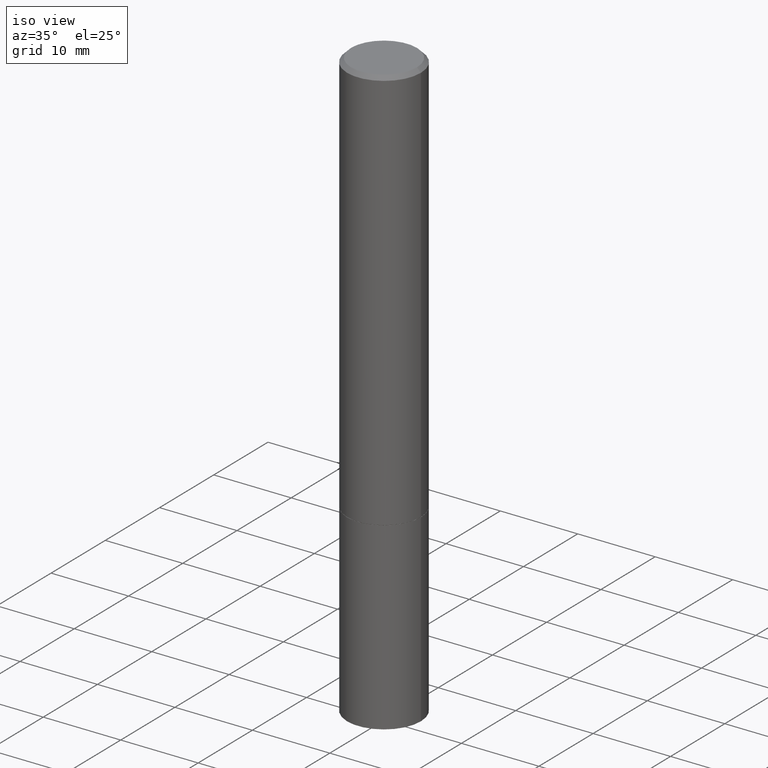
[diagram: clean part render]
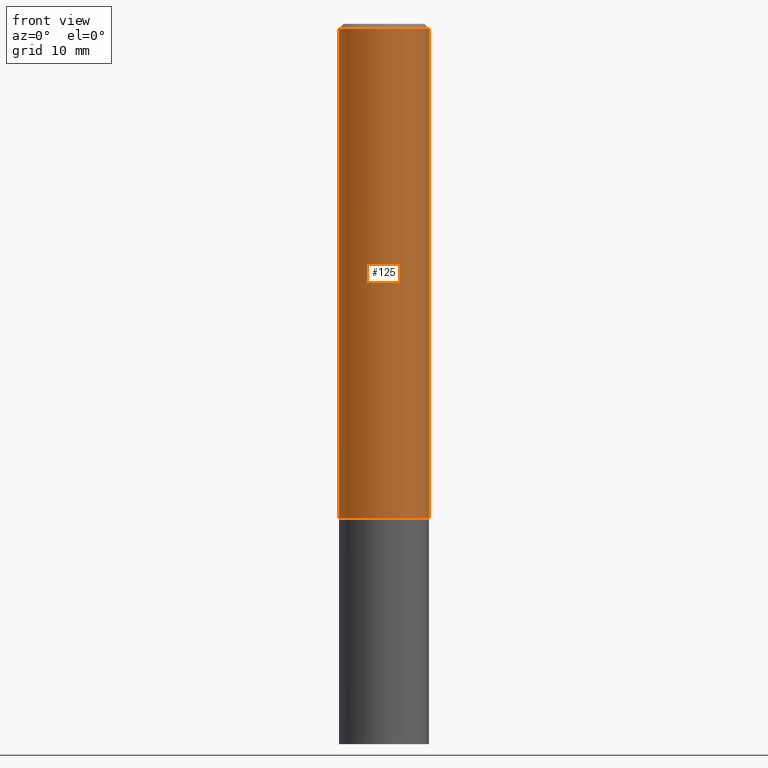
[diagram: tour spotlight — one face highlighted and labeled with its STEP entity id]
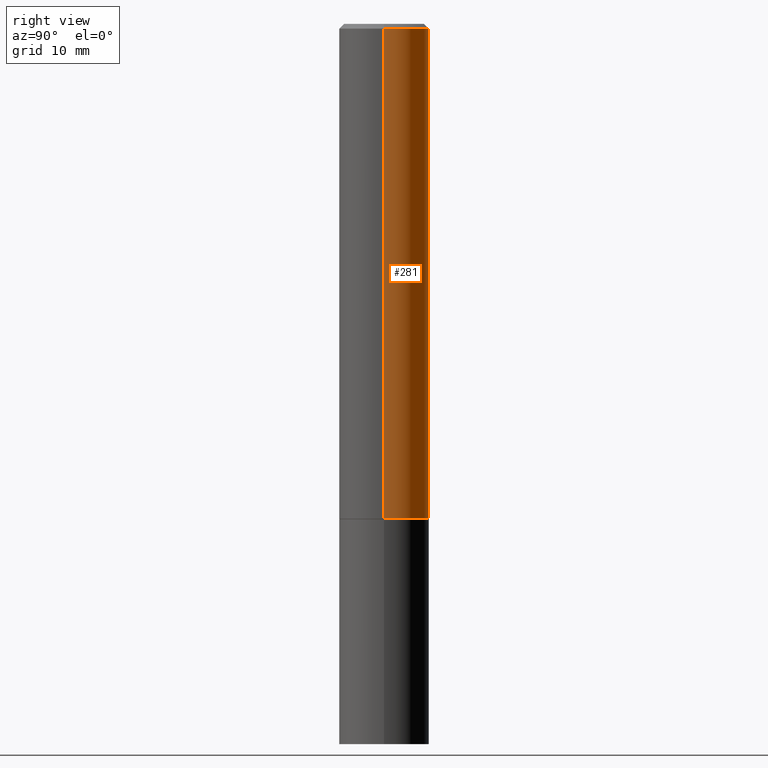
[diagram: tour spotlight — one face highlighted and labeled with its STEP entity id]
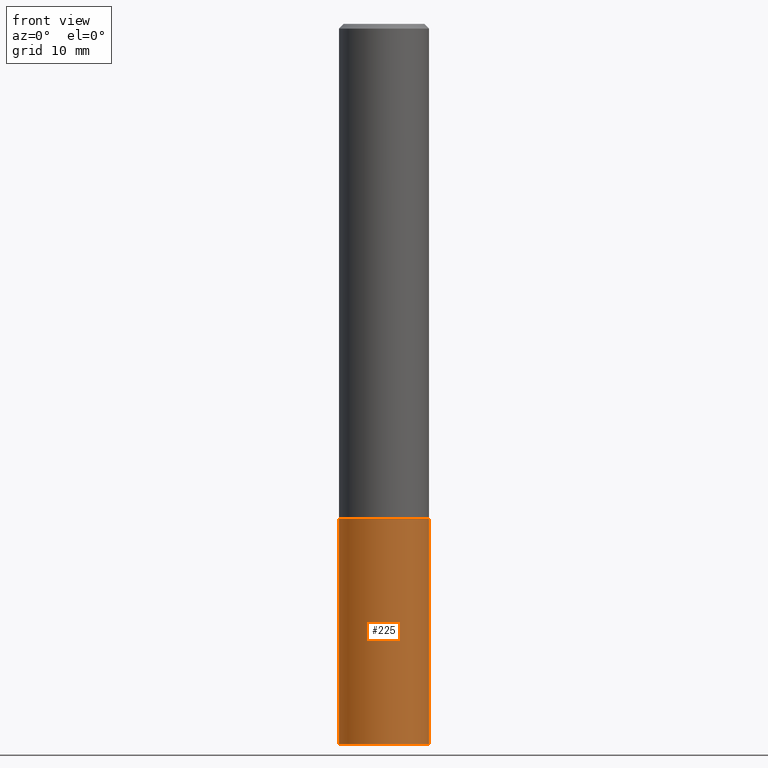
[diagram: tour spotlight — one face highlighted and labeled with its STEP entity id]
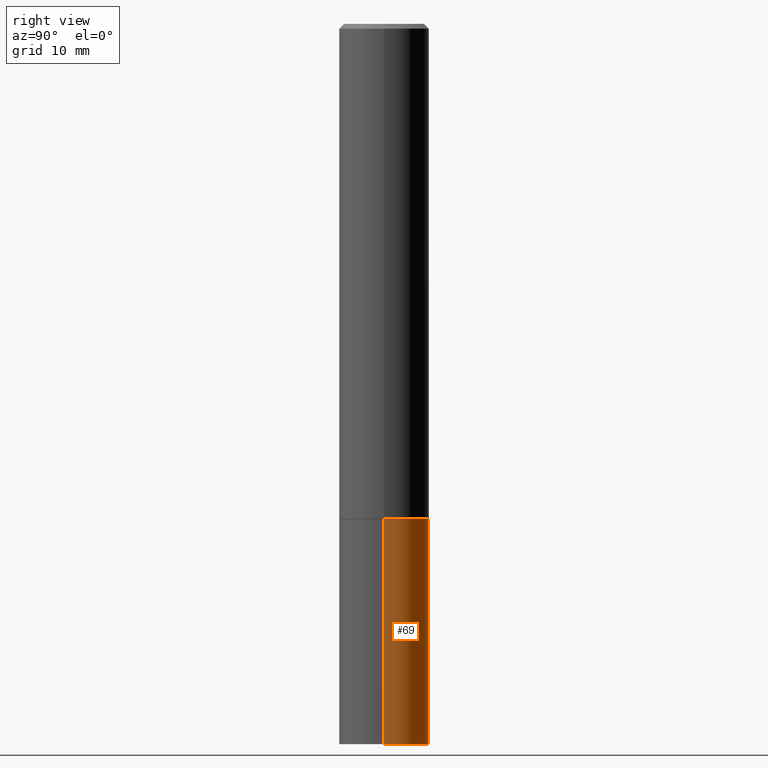
[diagram: tour spotlight — one face highlighted and labeled with its STEP entity id]
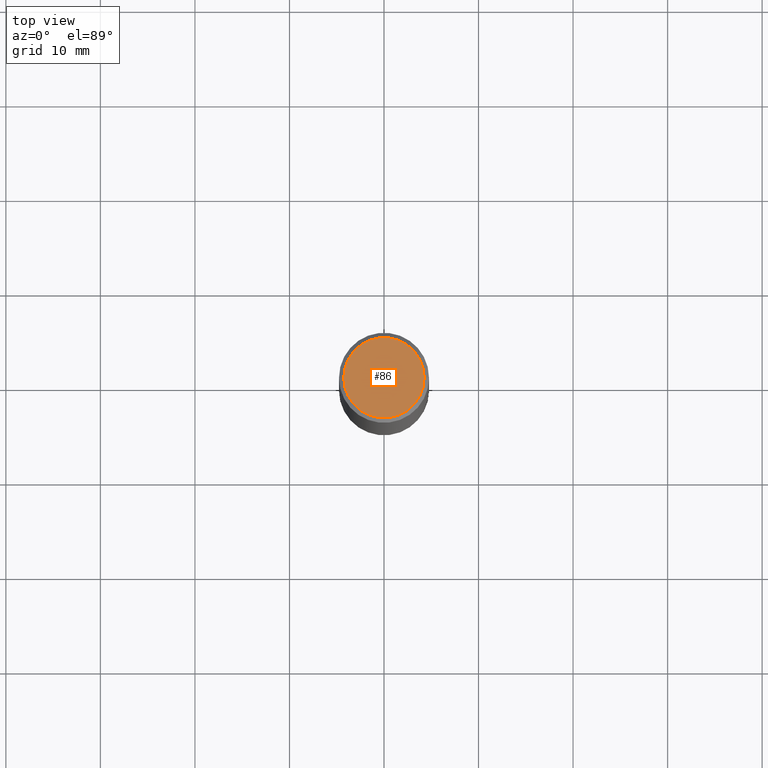
[diagram: tour spotlight — one face highlighted and labeled with its STEP entity id]
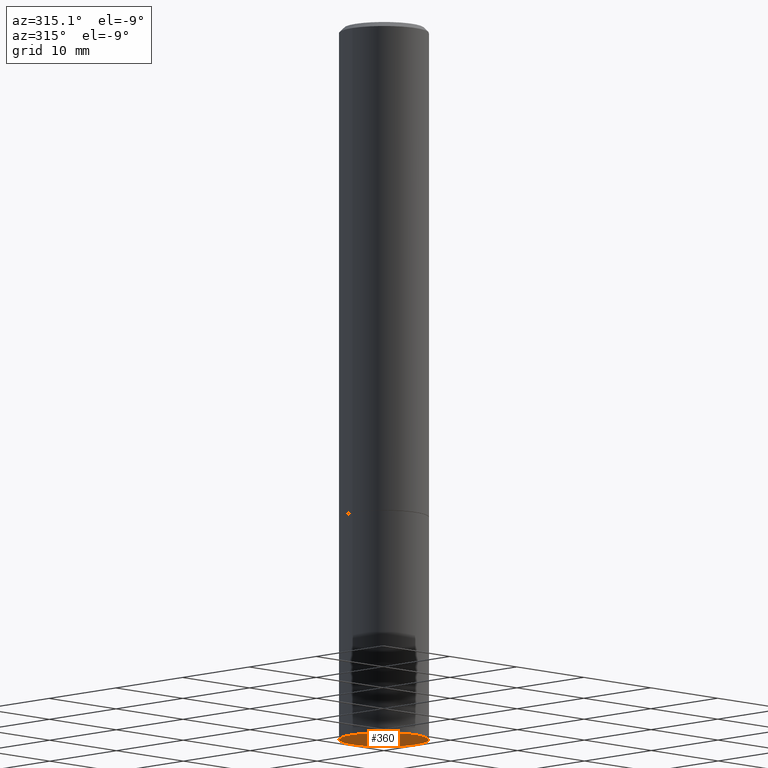
[diagram: tour spotlight — one face highlighted and labeled with its STEP entity id]
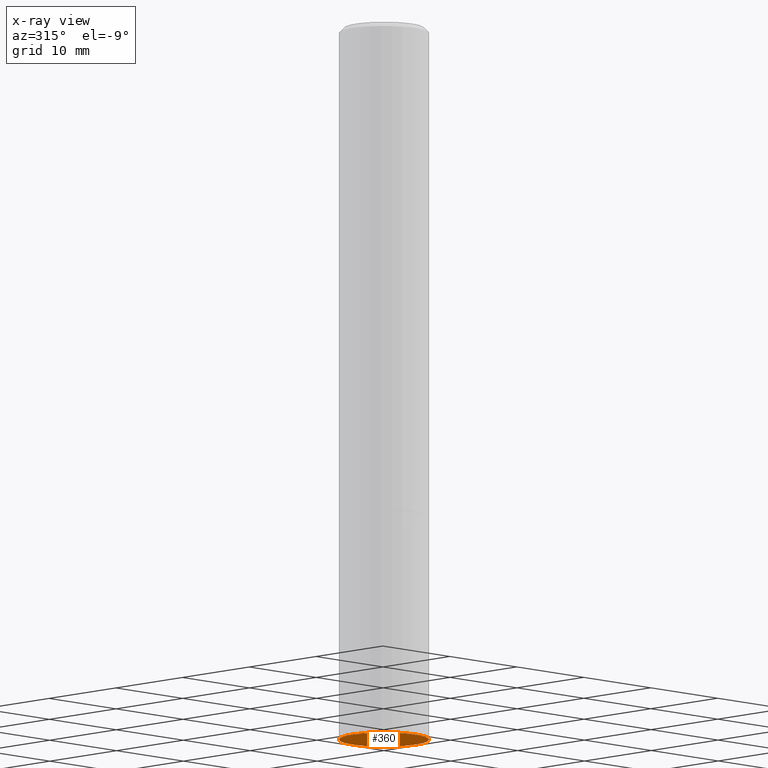
[diagram: x-ray of the same camera — body ghosted, this tour face saturated]
A machine part: a face-by-face anatomy tour. The part has 12 B-rep faces; the first image is the clean iso view, then the 6 largest visible faces are spotlighted one at a time (largest first), each with its STEP entity span.

Face 1 — front view, entity #125. In plain terms, the highlighted cylindrical surface (partial cylindrical patch) has radius 4.7625 mm, axis along (-0, 0, 1).
Definition (entity closure, byte-faithful):
#2 = VERTEX_POINT ( 'NONE', #108 ) ;
#5 = DIRECTION ( 'NONE',  ( 1.000000000000000000, -6.982962677686266711E-15, 0.000000000000000000 ) ) ;
#13 = LINE ( 'NONE', #272, #51 ) ;
#47 = EDGE_CURVE ( 'NONE', #2, #316, #13, .T. ) ;
#51 = VECTOR ( 'NONE', #190, 39.37007874015748143 ) ;
#55 = AXIS2_PLACEMENT_3D ( 'NONE', #121, #68, #237 ) ;
#61 = EDGE_LOOP ( 'NONE', ( #331, #251, #212, #284 ) ) ;
#68 = DIRECTION ( 'NONE',  ( -2.445468806185136597E-29, 3.491481338843145583E-15, 1.000000000000000000 ) ) ;
#78 = DIRECTION ( 'NONE',  ( -2.445468806185136877E-29, 3.491481338843145188E-15, 1.000000000000000000 ) ) ;
#84 = LINE ( 'NONE', #359, #334 ) ;
#88 = VERTEX_POINT ( 'NONE', #206 ) ;
#92 = EDGE_CURVE ( 'NONE', #2, #146, #356, .T. ) ;
#95 = AXIS2_PLACEMENT_3D ( 'NONE', #218, #322, #240 ) ;
#98 = EDGE_CURVE ( 'NONE', #316, #88, #261, .T. ) ;
#99 = CYLINDRICAL_SURFACE ( 'NONE', #55, 0.1874999999999998890 ) ;
#101 = CARTESIAN_POINT ( 'NONE',  ( -0.1874999999999997502, 1.239475875289309935E-15, -0.02000000000000004205 ) ) ;
#108 = CARTESIAN_POINT ( 'NONE',  ( -0.1875000000000000278, -2.301491573850814614E-15, -2.061500000000000110 ) ) ;
#121 = CARTESIAN_POINT ( 'NONE',  ( 0.000000000000000000, 0.000000000000000000, 0.000000000000000000 ) ) ;
#125 = ADVANCED_FACE ( 'NONE', ( #293 ), #99, .T. ) ;
#132 = DIRECTION ( 'NONE',  ( -2.445468806185136597E-29, 3.491481338843145583E-15, 1.000000000000000000 ) ) ;
#146 = VERTEX_POINT ( 'NONE', #353 ) ;
#171 = EDGE_CURVE ( 'NONE', #146, #88, #84, .T. ) ;
#173 = AXIS2_PLACEMENT_3D ( 'NONE', #349, #132, #5 ) ;
#190 = DIRECTION ( 'NONE',  ( -2.445468806185136877E-29, 3.491481338843145188E-15, 1.000000000000000000 ) ) ;
#206 = CARTESIAN_POINT ( 'NONE',  ( 0.1874999999999997502, -1.356173001359023494E-15, -0.02000000000000004205 ) ) ;
#212 = ORIENTED_EDGE ( 'NONE', *, *, #171, .T. ) ;
#218 = CARTESIAN_POINT ( 'NONE',  ( 4.890937612370283668E-31, -6.982962677686305168E-17, -0.02000000000000004205 ) ) ;
#237 = DIRECTION ( 'NONE',  ( 1.000000000000000000, -6.982962677686265922E-15, 4.876176775795935793E-29 ) ) ;
#240 = DIRECTION ( 'NONE',  ( 1.000000000000000000, -6.982962677686265133E-15, 0.000000000000000000 ) ) ;
#251 = ORIENTED_EDGE ( 'NONE', *, *, #92, .T. ) ;
#261 = CIRCLE ( 'NONE', #95, 0.1874999999999997502 ) ;
#272 = CARTESIAN_POINT ( 'NONE',  ( -0.1874999999999998890, 1.332267629550187060E-15, -9.223003294227942385E-30 ) ) ;
#284 = ORIENTED_EDGE ( 'NONE', *, *, #98, .F. ) ;
#293 = FACE_OUTER_BOUND ( 'NONE', #61, .T. ) ;
#316 = VERTEX_POINT ( 'NONE', #101 ) ;
#322 = DIRECTION ( 'NONE',  ( -2.445468806185136597E-29, 3.491481338843145583E-15, 1.000000000000000000 ) ) ;
#331 = ORIENTED_EDGE ( 'NONE', *, *, #47, .F. ) ;
#334 = VECTOR ( 'NONE', #78, 39.37007874015748143 ) ;
#349 = CARTESIAN_POINT ( 'NONE',  ( 5.041333943950659188E-29, -7.197688780025145571E-15, -2.061500000000000110 ) ) ;
#353 = CARTESIAN_POINT ( 'NONE',  ( 0.1875000000000000278, -8.506994282091320579E-15, -2.061500000000000110 ) ) ;
#356 = CIRCLE ( 'NONE', #173, 0.1875000000000000278 ) ;
#359 = CARTESIAN_POINT ( 'NONE',  ( 0.1874999999999998890, -1.309305502066174022E-15, 9.142831454617374006E-30 ) ) ;

Face 2 — right view, entity #281. In plain terms, the highlighted cylindrical surface (partial cylindrical patch) has radius 4.7625 mm, axis along (-0, 0, 1).
Definition (entity closure, byte-faithful):
#2 = VERTEX_POINT ( 'NONE', #108 ) ;
#9 = DIRECTION ( 'NONE',  ( 1.000000000000000000, -6.982962677686266711E-15, 0.000000000000000000 ) ) ;
#13 = LINE ( 'NONE', #272, #51 ) ;
#32 = CIRCLE ( 'NONE', #231, 0.1874999999999997502 ) ;
#46 = DIRECTION ( 'NONE',  ( -2.445468806185136597E-29, 3.491481338843145583E-15, 1.000000000000000000 ) ) ;
#47 = EDGE_CURVE ( 'NONE', #2, #316, #13, .T. ) ;
#51 = VECTOR ( 'NONE', #190, 39.37007874015748143 ) ;
#58 = CIRCLE ( 'NONE', #138, 0.1875000000000000278 ) ;
#73 = DIRECTION ( 'NONE',  ( 1.000000000000000000, -6.982962677686265133E-15, 0.000000000000000000 ) ) ;
#78 = DIRECTION ( 'NONE',  ( -2.445468806185136877E-29, 3.491481338843145188E-15, 1.000000000000000000 ) ) ;
#84 = LINE ( 'NONE', #359, #334 ) ;
#85 = AXIS2_PLACEMENT_3D ( 'NONE', #236, #347, #342 ) ;
#88 = VERTEX_POINT ( 'NONE', #206 ) ;
#93 = ORIENTED_EDGE ( 'NONE', *, *, #348, .T. ) ;
#101 = CARTESIAN_POINT ( 'NONE',  ( -0.1874999999999997502, 1.239475875289309935E-15, -0.02000000000000004205 ) ) ;
#108 = CARTESIAN_POINT ( 'NONE',  ( -0.1875000000000000278, -2.301491573850814614E-15, -2.061500000000000110 ) ) ;
#111 = ORIENTED_EDGE ( 'NONE', *, *, #47, .T. ) ;
#115 = CARTESIAN_POINT ( 'NONE',  ( 4.890937612370283668E-31, -6.982962677686305168E-17, -0.02000000000000004205 ) ) ;
#135 = EDGE_LOOP ( 'NONE', ( #93, #111, #365, #201 ) ) ;
#138 = AXIS2_PLACEMENT_3D ( 'NONE', #329, #46, #9 ) ;
#146 = VERTEX_POINT ( 'NONE', #353 ) ;
#171 = EDGE_CURVE ( 'NONE', #146, #88, #84, .T. ) ;
#190 = DIRECTION ( 'NONE',  ( -2.445468806185136877E-29, 3.491481338843145188E-15, 1.000000000000000000 ) ) ;
#201 = ORIENTED_EDGE ( 'NONE', *, *, #171, .F. ) ;
#204 = CYLINDRICAL_SURFACE ( 'NONE', #85, 0.1874999999999998890 ) ;
#206 = CARTESIAN_POINT ( 'NONE',  ( 0.1874999999999997502, -1.356173001359023494E-15, -0.02000000000000004205 ) ) ;
#209 = FACE_OUTER_BOUND ( 'NONE', #135, .T. ) ;
#231 = AXIS2_PLACEMENT_3D ( 'NONE', #115, #299, #73 ) ;
#236 = CARTESIAN_POINT ( 'NONE',  ( 0.000000000000000000, 0.000000000000000000, 0.000000000000000000 ) ) ;
#257 = EDGE_CURVE ( 'NONE', #88, #316, #32, .T. ) ;
#272 = CARTESIAN_POINT ( 'NONE',  ( -0.1874999999999998890, 1.332267629550187060E-15, -9.223003294227942385E-30 ) ) ;
#281 = ADVANCED_FACE ( 'NONE', ( #209 ), #204, .T. ) ;
#299 = DIRECTION ( 'NONE',  ( -2.445468806185136597E-29, 3.491481338843145583E-15, 1.000000000000000000 ) ) ;
#316 = VERTEX_POINT ( 'NONE', #101 ) ;
#329 = CARTESIAN_POINT ( 'NONE',  ( 5.041333943950659188E-29, -7.197688780025145571E-15, -2.061500000000000110 ) ) ;
#334 = VECTOR ( 'NONE', #78, 39.37007874015748143 ) ;
#342 = DIRECTION ( 'NONE',  ( 1.000000000000000000, -6.982962677686265922E-15, 4.876176775795935793E-29 ) ) ;
#347 = DIRECTION ( 'NONE',  ( -2.445468806185136597E-29, 3.491481338843145583E-15, 1.000000000000000000 ) ) ;
#348 = EDGE_CURVE ( 'NONE', #146, #2, #58, .T. ) ;
#353 = CARTESIAN_POINT ( 'NONE',  ( 0.1875000000000000278, -8.506994282091320579E-15, -2.061500000000000110 ) ) ;
#359 = CARTESIAN_POINT ( 'NONE',  ( 0.1874999999999998890, -1.309305502066174022E-15, 9.142831454617374006E-30 ) ) ;
#365 = ORIENTED_EDGE ( 'NONE', *, *, #257, .F. ) ;

Face 3 — front view, entity #225. In plain terms, the highlighted cylindrical surface (partial cylindrical patch) has radius 4.7625 mm, axis along (-0, 0, 1).
Definition (entity closure, byte-faithful):
#10 = LINE ( 'NONE', #102, #165 ) ;
#11 = CARTESIAN_POINT ( 'NONE',  ( 0.1875000000000000278, -1.178374951859561136E-14, -3.000000000000000444 ) ) ;
#20 = ORIENTED_EDGE ( 'NONE', *, *, #143, .F. ) ;
#25 = EDGE_CURVE ( 'NONE', #350, #71, #188, .T. ) ;
#48 = DIRECTION ( 'NONE',  ( -2.445468806185136597E-29, 3.491481338843145583E-15, 1.000000000000000000 ) ) ;
#50 = DIRECTION ( 'NONE',  ( -2.445468806185136877E-29, 3.491481338843145188E-15, 1.000000000000000000 ) ) ;
#64 = CARTESIAN_POINT ( 'NONE',  ( 0.1875000000000000278, -1.309305502066175008E-15, 9.142831454617381013E-30 ) ) ;
#67 = CARTESIAN_POINT ( 'NONE',  ( -0.1875000000000000278, -7.505544509396524617E-15, -2.062500000000000000 ) ) ;
#71 = VERTEX_POINT ( 'NONE', #126 ) ;
#74 = CARTESIAN_POINT ( 'NONE',  ( 7.336406418555409790E-29, -1.047444401652943635E-14, -3.000000000000000444 ) ) ;
#75 = DIRECTION ( 'NONE',  ( 1.000000000000000000, -6.982962677686266711E-15, 0.000000000000000000 ) ) ;
#83 = DIRECTION ( 'NONE',  ( 1.000000000000000000, -6.982962677686265922E-15, 4.876176775795935793E-29 ) ) ;
#102 = CARTESIAN_POINT ( 'NONE',  ( -0.1875000000000000278, 1.332267629550188046E-15, -9.223003294227947991E-30 ) ) ;
#104 = CARTESIAN_POINT ( 'NONE',  ( 5.043779412756844791E-29, -7.201180261363988578E-15, -2.062500000000000000 ) ) ;
#120 = AXIS2_PLACEMENT_3D ( 'NONE', #258, #306, #83 ) ;
#124 = ORIENTED_EDGE ( 'NONE', *, *, #145, .T. ) ;
#126 = CARTESIAN_POINT ( 'NONE',  ( 0.1875000000000000278, -8.510485763430163586E-15, -2.062500000000000000 ) ) ;
#137 = FACE_OUTER_BOUND ( 'NONE', #294, .T. ) ;
#143 = EDGE_CURVE ( 'NONE', #319, #339, #10, .T. ) ;
#145 = EDGE_CURVE ( 'NONE', #319, #350, #197, .T. ) ;
#163 = EDGE_CURVE ( 'NONE', #339, #71, #200, .T. ) ;
#165 = VECTOR ( 'NONE', #216, 39.37007874015748143 ) ;
#188 = LINE ( 'NONE', #64, #253 ) ;
#197 = CIRCLE ( 'NONE', #255, 0.1875000000000000278 ) ;
#200 = CIRCLE ( 'NONE', #361, 0.1875000000000000278 ) ;
#216 = DIRECTION ( 'NONE',  ( -2.445468806185136877E-29, 3.491481338843145188E-15, 1.000000000000000000 ) ) ;
#225 = ADVANCED_FACE ( 'NONE', ( #137 ), #336, .T. ) ;
#245 = DIRECTION ( 'NONE',  ( 1.000000000000000000, -6.982962677686261189E-15, 0.000000000000000000 ) ) ;
#253 = VECTOR ( 'NONE', #50, 39.37007874015748143 ) ;
#255 = AXIS2_PLACEMENT_3D ( 'NONE', #74, #48, #245 ) ;
#258 = CARTESIAN_POINT ( 'NONE',  ( 0.000000000000000000, 0.000000000000000000, 0.000000000000000000 ) ) ;
#274 = CARTESIAN_POINT ( 'NONE',  ( -0.1875000000000000278, -7.505544509396524617E-15, -3.000000000000000444 ) ) ;
#282 = ORIENTED_EDGE ( 'NONE', *, *, #25, .T. ) ;
#294 = EDGE_LOOP ( 'NONE', ( #20, #124, #282, #344 ) ) ;
#306 = DIRECTION ( 'NONE',  ( -2.445468806185136597E-29, 3.491481338843145583E-15, 1.000000000000000000 ) ) ;
#319 = VERTEX_POINT ( 'NONE', #274 ) ;
#330 = DIRECTION ( 'NONE',  ( -2.445468806185136597E-29, 3.491481338843145583E-15, 1.000000000000000000 ) ) ;
#336 = CYLINDRICAL_SURFACE ( 'NONE', #120, 0.1875000000000000278 ) ;
#339 = VERTEX_POINT ( 'NONE', #67 ) ;
#344 = ORIENTED_EDGE ( 'NONE', *, *, #163, .F. ) ;
#350 = VERTEX_POINT ( 'NONE', #11 ) ;
#361 = AXIS2_PLACEMENT_3D ( 'NONE', #104, #330, #75 ) ;

Face 4 — right view, entity #69. In plain terms, the highlighted cylindrical surface (partial cylindrical patch) has radius 4.7625 mm, axis along (-0, 0, 1).
Definition (entity closure, byte-faithful):
#10 = LINE ( 'NONE', #102, #165 ) ;
#11 = CARTESIAN_POINT ( 'NONE',  ( 0.1875000000000000278, -1.178374951859561136E-14, -3.000000000000000444 ) ) ;
#18 = EDGE_CURVE ( 'NONE', #350, #319, #295, .T. ) ;
#25 = EDGE_CURVE ( 'NONE', #350, #71, #188, .T. ) ;
#45 = CARTESIAN_POINT ( 'NONE',  ( 7.336406418555409790E-29, -1.047444401652943635E-14, -3.000000000000000444 ) ) ;
#49 = ORIENTED_EDGE ( 'NONE', *, *, #191, .F. ) ;
#50 = DIRECTION ( 'NONE',  ( -2.445468806185136877E-29, 3.491481338843145188E-15, 1.000000000000000000 ) ) ;
#53 = ORIENTED_EDGE ( 'NONE', *, *, #143, .T. ) ;
#56 = CARTESIAN_POINT ( 'NONE',  ( 5.043779412756844791E-29, -7.201180261363988578E-15, -2.062500000000000000 ) ) ;
#64 = CARTESIAN_POINT ( 'NONE',  ( 0.1875000000000000278, -1.309305502066175008E-15, 9.142831454617381013E-30 ) ) ;
#67 = CARTESIAN_POINT ( 'NONE',  ( -0.1875000000000000278, -7.505544509396524617E-15, -2.062500000000000000 ) ) ;
#69 = ADVANCED_FACE ( 'NONE', ( #128 ), #302, .T. ) ;
#71 = VERTEX_POINT ( 'NONE', #126 ) ;
#76 = ORIENTED_EDGE ( 'NONE', *, *, #18, .T. ) ;
#102 = CARTESIAN_POINT ( 'NONE',  ( -0.1875000000000000278, 1.332267629550188046E-15, -9.223003294227947991E-30 ) ) ;
#126 = CARTESIAN_POINT ( 'NONE',  ( 0.1875000000000000278, -8.510485763430163586E-15, -2.062500000000000000 ) ) ;
#128 = FACE_OUTER_BOUND ( 'NONE', #161, .T. ) ;
#129 = DIRECTION ( 'NONE',  ( 1.000000000000000000, -6.982962677686261189E-15, 0.000000000000000000 ) ) ;
#143 = EDGE_CURVE ( 'NONE', #319, #339, #10, .T. ) ;
#161 = EDGE_LOOP ( 'NONE', ( #76, #53, #49, #328 ) ) ;
#165 = VECTOR ( 'NONE', #216, 39.37007874015748143 ) ;
#166 = DIRECTION ( 'NONE',  ( 1.000000000000000000, -6.982962677686266711E-15, 0.000000000000000000 ) ) ;
#182 = DIRECTION ( 'NONE',  ( -2.445468806185136597E-29, 3.491481338843145583E-15, 1.000000000000000000 ) ) ;
#187 = CIRCLE ( 'NONE', #297, 0.1875000000000000278 ) ;
#188 = LINE ( 'NONE', #64, #253 ) ;
#191 = EDGE_CURVE ( 'NONE', #71, #339, #187, .T. ) ;
#207 = DIRECTION ( 'NONE',  ( -2.445468806185136597E-29, 3.491481338843145583E-15, 1.000000000000000000 ) ) ;
#216 = DIRECTION ( 'NONE',  ( -2.445468806185136877E-29, 3.491481338843145188E-15, 1.000000000000000000 ) ) ;
#253 = VECTOR ( 'NONE', #50, 39.37007874015748143 ) ;
#254 = DIRECTION ( 'NONE',  ( -2.445468806185136597E-29, 3.491481338843145583E-15, 1.000000000000000000 ) ) ;
#274 = CARTESIAN_POINT ( 'NONE',  ( -0.1875000000000000278, -7.505544509396524617E-15, -3.000000000000000444 ) ) ;
#280 = CARTESIAN_POINT ( 'NONE',  ( 0.000000000000000000, 0.000000000000000000, 0.000000000000000000 ) ) ;
#295 = CIRCLE ( 'NONE', #355, 0.1875000000000000278 ) ;
#297 = AXIS2_PLACEMENT_3D ( 'NONE', #56, #254, #166 ) ;
#302 = CYLINDRICAL_SURFACE ( 'NONE', #352, 0.1875000000000000278 ) ;
#319 = VERTEX_POINT ( 'NONE', #274 ) ;
#324 = DIRECTION ( 'NONE',  ( 1.000000000000000000, -6.982962677686265922E-15, 4.876176775795935793E-29 ) ) ;
#328 = ORIENTED_EDGE ( 'NONE', *, *, #25, .F. ) ;
#339 = VERTEX_POINT ( 'NONE', #67 ) ;
#350 = VERTEX_POINT ( 'NONE', #11 ) ;
#352 = AXIS2_PLACEMENT_3D ( 'NONE', #280, #207, #324 ) ;
#355 = AXIS2_PLACEMENT_3D ( 'NONE', #45, #182, #129 ) ;

Face 5 — top view, entity #86. In plain terms, the highlighted planar face has unit normal (0, -0, -1).
Definition (entity closure, byte-faithful):
#8 = DIRECTION ( 'NONE',  ( 1.000000000000000000, -6.982962677686265922E-15, 4.875936752492899929E-29 ) ) ;
#23 = EDGE_CURVE ( 'NONE', #266, #325, #199, .T. ) ;
#29 = AXIS2_PLACEMENT_3D ( 'NONE', #277, #327, #96 ) ;
#34 = EDGE_LOOP ( 'NONE', ( #130, #341 ) ) ;
#38 = FACE_OUTER_BOUND ( 'NONE', #34, .T. ) ;
#39 = AXIS2_PLACEMENT_3D ( 'NONE', #97, #268, #8 ) ;
#63 = CARTESIAN_POINT ( 'NONE',  ( 0.1674999999999997602, -1.252653207992876711E-15, 4.268512490108880748E-18 ) ) ;
#66 = PLANE ( 'NONE',  #29 ) ;
#86 = ADVANCED_FACE ( 'NONE', ( #38 ), #66, .F. ) ;
#96 = DIRECTION ( 'NONE',  ( -1.000000000000000000, 6.982962677686265922E-15, -4.876176775795935793E-29 ) ) ;
#97 = CARTESIAN_POINT ( 'NONE',  ( -1.043851414335219820E-46, 1.490343170380447200E-32, 4.268512490100411279E-18 ) ) ;
#130 = ORIENTED_EDGE ( 'NONE', *, *, #23, .T. ) ;
#141 = EDGE_CURVE ( 'NONE', #325, #266, #215, .T. ) ;
#199 = CIRCLE ( 'NONE', #39, 0.1674999999999997602 ) ;
#215 = CIRCLE ( 'NONE', #303, 0.1674999999999997602 ) ;
#265 = CARTESIAN_POINT ( 'NONE',  ( -0.1674999999999997602, 1.204561061900878878E-15, 4.268512490092109750E-18 ) ) ;
#266 = VERTEX_POINT ( 'NONE', #265 ) ;
#268 = DIRECTION ( 'NONE',  ( -2.445468806185136597E-29, 3.491481338843145583E-15, 1.000000000000000000 ) ) ;
#275 = DIRECTION ( 'NONE',  ( 1.000000000000000000, -6.982962677686265922E-15, 4.875936752492899929E-29 ) ) ;
#277 = CARTESIAN_POINT ( 'NONE',  ( 1.169646248512447820E-15, 0.1674999999999997602, -5.826888680111757675E-16 ) ) ;
#298 = DIRECTION ( 'NONE',  ( -2.445468806185136597E-29, 3.491481338843145583E-15, 1.000000000000000000 ) ) ;
#301 = CARTESIAN_POINT ( 'NONE',  ( -1.043851414335219820E-46, 1.490343170380447200E-32, 4.268512490100411279E-18 ) ) ;
#303 = AXIS2_PLACEMENT_3D ( 'NONE', #301, #298, #275 ) ;
#325 = VERTEX_POINT ( 'NONE', #63 ) ;
#327 = DIRECTION ( 'NONE',  ( 2.438088387897960049E-29, -3.491481338843145188E-15, -1.000000000000000000 ) ) ;
#341 = ORIENTED_EDGE ( 'NONE', *, *, #141, .T. ) ;

Face 6 — auxiliary view, entity #360. An x-ray twin of the same camera follows (body ghosted, this face saturated) — the face is partly hidden behind the body. In plain terms, the highlighted planar face has unit normal (0, -0, -1).
Definition (entity closure, byte-faithful):
#11 = CARTESIAN_POINT ( 'NONE',  ( 0.1875000000000000278, -1.178374951859561136E-14, -3.000000000000000444 ) ) ;
#18 = EDGE_CURVE ( 'NONE', #350, #319, #295, .T. ) ;
#45 = CARTESIAN_POINT ( 'NONE',  ( 7.336406418555409790E-29, -1.047444401652943635E-14, -3.000000000000000444 ) ) ;
#48 = DIRECTION ( 'NONE',  ( -2.445468806185136597E-29, 3.491481338843145583E-15, 1.000000000000000000 ) ) ;
#74 = CARTESIAN_POINT ( 'NONE',  ( 7.336406418555409790E-29, -1.047444401652943635E-14, -3.000000000000000444 ) ) ;
#116 = AXIS2_PLACEMENT_3D ( 'NONE', #118, #243, #317 ) ;
#118 = CARTESIAN_POINT ( 'NONE',  ( 1.309305502066248372E-15, 0.1874999999999895361, -3.000000000000000888 ) ) ;
#127 = PLANE ( 'NONE',  #116 ) ;
#129 = DIRECTION ( 'NONE',  ( 1.000000000000000000, -6.982962677686261189E-15, 0.000000000000000000 ) ) ;
#145 = EDGE_CURVE ( 'NONE', #319, #350, #197, .T. ) ;
#153 = ORIENTED_EDGE ( 'NONE', *, *, #18, .F. ) ;
#182 = DIRECTION ( 'NONE',  ( -2.445468806185136597E-29, 3.491481338843145583E-15, 1.000000000000000000 ) ) ;
#185 = FACE_OUTER_BOUND ( 'NONE', #312, .T. ) ;
#197 = CIRCLE ( 'NONE', #255, 0.1875000000000000278 ) ;
#217 = ORIENTED_EDGE ( 'NONE', *, *, #145, .F. ) ;
#243 = DIRECTION ( 'NONE',  ( 2.438088387897960049E-29, -3.491481338843145188E-15, -1.000000000000000000 ) ) ;
#245 = DIRECTION ( 'NONE',  ( 1.000000000000000000, -6.982962677686261189E-15, 0.000000000000000000 ) ) ;
#255 = AXIS2_PLACEMENT_3D ( 'NONE', #74, #48, #245 ) ;
#274 = CARTESIAN_POINT ( 'NONE',  ( -0.1875000000000000278, -7.505544509396524617E-15, -3.000000000000000444 ) ) ;
#295 = CIRCLE ( 'NONE', #355, 0.1875000000000000278 ) ;
#312 = EDGE_LOOP ( 'NONE', ( #153, #217 ) ) ;
#317 = DIRECTION ( 'NONE',  ( -1.000000000000000000, 6.982962677686265922E-15, -4.876176775795935793E-29 ) ) ;
#319 = VERTEX_POINT ( 'NONE', #274 ) ;
#350 = VERTEX_POINT ( 'NONE', #11 ) ;
#355 = AXIS2_PLACEMENT_3D ( 'NONE', #45, #182, #129 ) ;
#360 = ADVANCED_FACE ( 'NONE', ( #185 ), #127, .T. ) ;